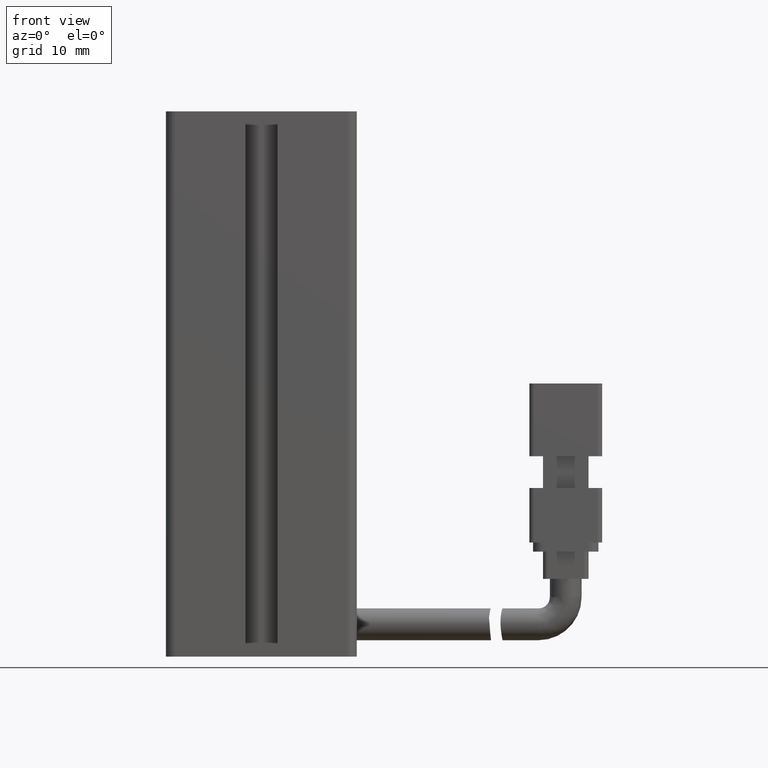
[diagram: clean part render]
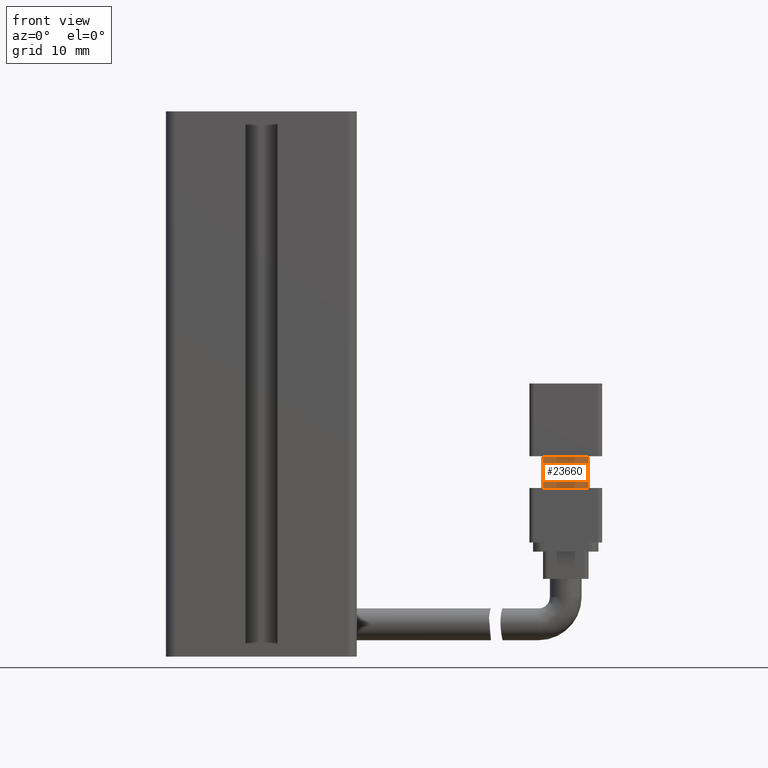
[diagram: same view with one face highlighted and labeled with its STEP entity id]
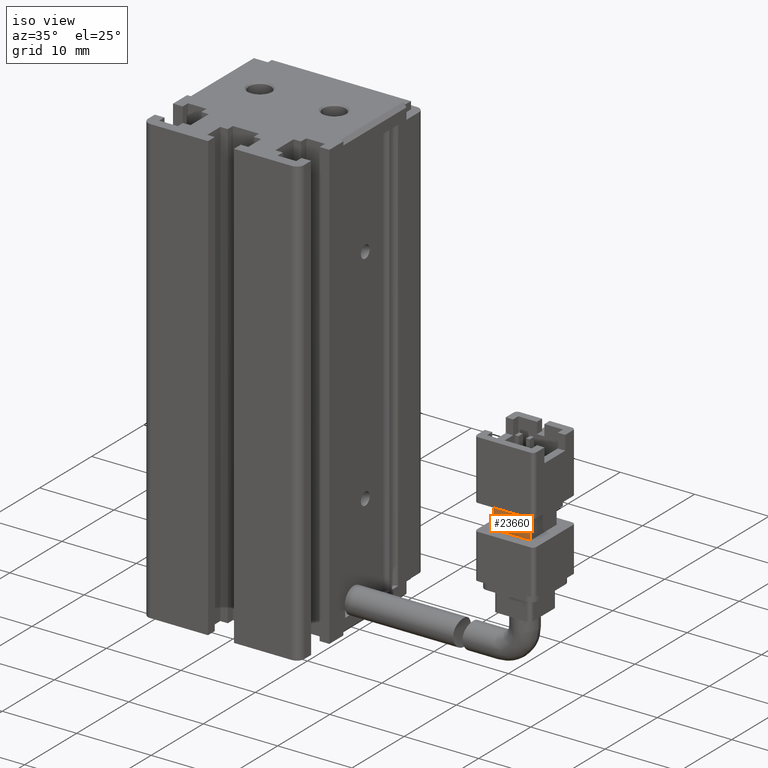
[diagram: same view with one face highlighted and labeled with its STEP entity id]
A machine part, front view. The second image highlights one B-rep face of the part: STEP entity #23660.
A second angle (iso view) of the same face is appended — the face is thin or edge-on in the first view.
In plain terms, the highlighted planar face has unit normal (-0, 1, -0).
Its self-contained STEP definition (entity closure, byte-faithful):
#593 = DIRECTION ( 'NONE',  ( -1.041348031262155300E-030, 5.551115123125780200E-017, 1.000000000000000000 ) ) ;
#2007 = VECTOR ( 'NONE', #2400, 1000.000000000000000 ) ;
#2400 = DIRECTION ( 'NONE',  ( -1.041348031262155300E-030, 5.551115123125780200E-017, 1.000000000000000000 ) ) ;
#2475 = DIRECTION ( 'NONE',  ( 1.000000000000000000, 3.304235192336770000E-015, 8.579261317967046800E-031 ) ) ;
#5394 = LINE ( 'NONE', #15679, #12942 ) ;
#6220 = CARTESIAN_POINT ( 'NONE',  ( 66.42537974683537500, 15.08379746835462900, -126.4499999999999700 ) ) ;
#6403 = CARTESIAN_POINT ( 'NONE',  ( 61.42537974683538200, 15.08379746835461300, -122.9499999999999700 ) ) ;
#6609 = EDGE_CURVE ( 'NONE', #22450, #12886, #24304, .T. ) ;
#7233 = DIRECTION ( 'NONE',  ( -1.000000000000000000, -3.217499018537929600E-015, -8.627409566576727700E-031 ) ) ;
#7325 = CARTESIAN_POINT ( 'NONE',  ( 61.42537974683538200, 15.08379746835461300, -126.4499999999999700 ) ) ;
#8082 = VERTEX_POINT ( 'NONE', #6403 ) ;
#8993 = PLANE ( 'NONE',  #11968 ) ;
#9700 = LINE ( 'NONE', #7325, #22360 ) ;
#10270 = EDGE_CURVE ( 'NONE', #22450, #11213, #9700, .T. ) ;
#10308 = EDGE_LOOP ( 'NONE', ( #26333, #26977, #12804, #11695 ) ) ;
#11213 = VERTEX_POINT ( 'NONE', #26002 ) ;
#11695 = ORIENTED_EDGE ( 'NONE', *, *, #10270, .F. ) ;
#11968 = AXIS2_PLACEMENT_3D ( 'NONE', #26745, #19899, #21911 ) ;
#12557 = CARTESIAN_POINT ( 'NONE',  ( 66.42537974683537500, 15.08379746835462900, -122.9499999999999700 ) ) ;
#12804 = ORIENTED_EDGE ( 'NONE', *, *, #18240, .F. ) ;
#12886 = VERTEX_POINT ( 'NONE', #12557 ) ;
#12942 = VECTOR ( 'NONE', #2475, 1000.000000000000000 ) ;
#14410 = EDGE_CURVE ( 'NONE', #8082, #12886, #5394, .T. ) ;
#14949 = LINE ( 'NONE', #16334, #21523 ) ;
#15597 = CARTESIAN_POINT ( 'NONE',  ( 66.42537974683537500, 15.08379746835462900, -122.9499999999999700 ) ) ;
#15679 = CARTESIAN_POINT ( 'NONE',  ( 67.42537974683537500, 15.08379746835463200, -122.9499999999999700 ) ) ;
#16334 = CARTESIAN_POINT ( 'NONE',  ( 61.42537974683538200, 15.08379746835461300, -122.9499999999999700 ) ) ;
#18240 = EDGE_CURVE ( 'NONE', #11213, #8082, #14949, .T. ) ;
#19899 = DIRECTION ( 'NONE',  ( -3.217499018537929600E-015, 1.000000000000000000, -5.551115123125780200E-017 ) ) ;
#21523 = VECTOR ( 'NONE', #593, 1000.000000000000000 ) ;
#21911 = DIRECTION ( 'NONE',  ( 1.000000000000000000, 3.217499018537929600E-015, 8.627409566576727700E-031 ) ) ;
#22360 = VECTOR ( 'NONE', #7233, 1000.000000000000000 ) ;
#22450 = VERTEX_POINT ( 'NONE', #6220 ) ;
#23660 = ADVANCED_FACE ( 'NONE', ( #26692 ), #8993, .F. ) ;
#24304 = LINE ( 'NONE', #15597, #2007 ) ;
#26002 = CARTESIAN_POINT ( 'NONE',  ( 61.42537974683538200, 15.08379746835461300, -126.4499999999999700 ) ) ;
#26333 = ORIENTED_EDGE ( 'NONE', *, *, #6609, .T. ) ;
#26692 = FACE_OUTER_BOUND ( 'NONE', #10308, .T. ) ;
#26745 = CARTESIAN_POINT ( 'NONE',  ( 61.42537974683538200, 15.08379746835461300, -122.9499999999999700 ) ) ;
#26977 = ORIENTED_EDGE ( 'NONE', *, *, #14410, .F. ) ;